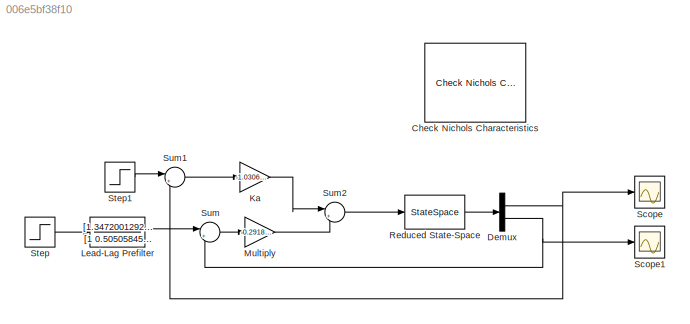
MODEL slx_006e5bf38f10
KIND model
CONFIG AbsTol = auto
CONFIG EnableMultiTasking = off
CONFIG FixedStep = auto
CONFIG MaxStep = auto
CONFIG MinStep = auto
CONFIG RelTol = 1e-3
CONFIG SampleTimeConstraint = Unconstrained
CONFIG SolverName = VariableStepAuto
CONFIG StartTime = 0.0
CONFIG StopTime = 10
BLOCK [Reference] Check Nichols Characteristics  REF=slctrl_linear/Check Nichols
Characteristics
  InstantiateOnLoad = on
  LibrarySourceBlock = slctrlblks/Model Verification/Check Nichols\nCharacteristics
  SourceBlock = slctrl_linear/Check Nichols\nCharacteristics
  SourceType = Checks_Nichols
BLOCK [Demux] Demux
  Outputs = 2
BLOCK [Gain] Ka
  Gain = -1.03060894073092
BLOCK [TransferFcn] Lead-Lag Prefilter
  Denominator = [1 0.505058454307142]
  Numerator = [1.3472001292297e-12 5.24663894955974]
BLOCK [Gain] Multiply
  Gain = -0.291805556085257
BLOCK [StateSpace] Reduced State-Space
  A = A_ac_p4
  B = B_ac_p4
  C = C_ac_p4
  D = D_ac_p4
  InitialCondition = 0
BLOCK [Scope] Scope
  Floating = off
  NumInputPorts = 1
  ScopeSpecificationString = Simulink.scopes.TimeScopeBlockCfg('CurrentConfiguration', extmgr.ConfigurationSet(extmgr.Configuration('Core','General UI',true),extmgr.Configuration('Core','Source UI',true),extmgr.Configuration('Sources','WiredSimulink',true),extmgr.Configuration('Visuals','Time Domain',true,'SerializedDisplays',{struct('MinYLimReal','-0.22979','MaxYLimReal','2.06815','YLabelReal','','MinYLimMag','0.00000','MaxY...<+1416ch>
BLOCK [Scope] Scope1
  Floating = off
  NumInputPorts = 1
  ScopeSpecificationString = Simulink.scopes.TimeScopeBlockCfg('CurrentConfiguration', extmgr.ConfigurationSet(extmgr.Configuration('Core','General UI',true),extmgr.Configuration('Core','Source UI',true),extmgr.Configuration('Sources','WiredSimulink',true,'DataLoggingVariableName','ScopeData1'),extmgr.Configuration('Visuals','Time Domain',true,'SerializedDisplays',{struct('MinYLimReal','-1.29144','MaxYLimReal','0.14349','YLab...<+1484ch>
BLOCK [Step] Step
  SampleTime = 0
BLOCK [Step] Step1
  After = 0
  SampleTime = 0
BLOCK [Sum] Sum
  Inputs = |+-
BLOCK [Sum] Sum1
  Inputs = |+-
BLOCK [Sum] Sum2
  Inputs = |++
NET Demux:1 -> Scope:1, Sum1:2
NET Demux:2 -> Scope1:1, Sum:2
LINE Ka:1 -> Sum2:1
LINE Lead-Lag Prefilter:1 -> Sum:1
LINE Multiply:1 -> Sum2:2
LINE Reduced State-Space:1 -> Demux:1
LINE Step1:1 -> Sum1:1
LINE Step:1 -> Lead-Lag Prefilter:1
LINE Sum1:1 -> Ka:1
LINE Sum2:1 -> Reduced State-Space:1
LINE Sum:1 -> Multiply:1
note: NET lines group one-source signal fan-out (src -> all destinations, sorted); 1:1 wires keep LINE
